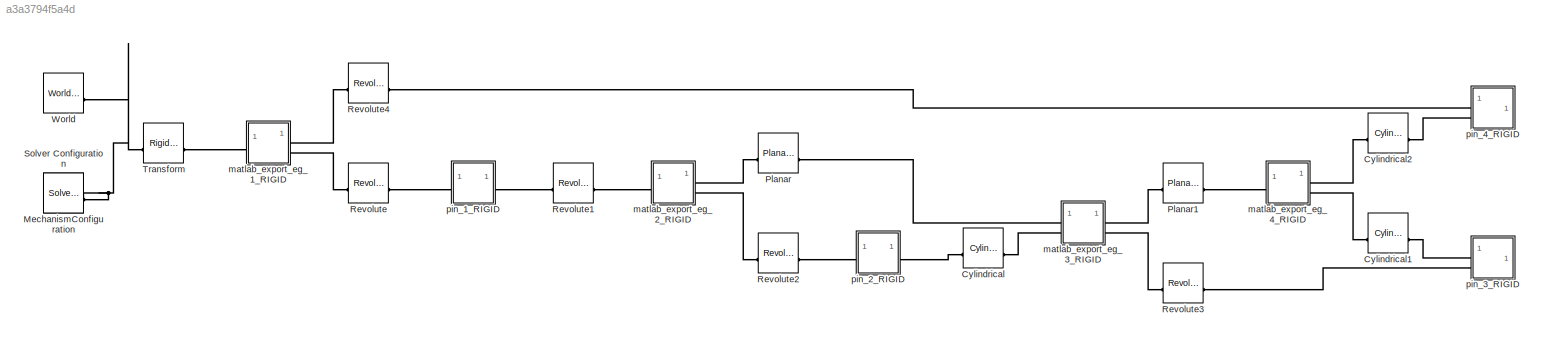
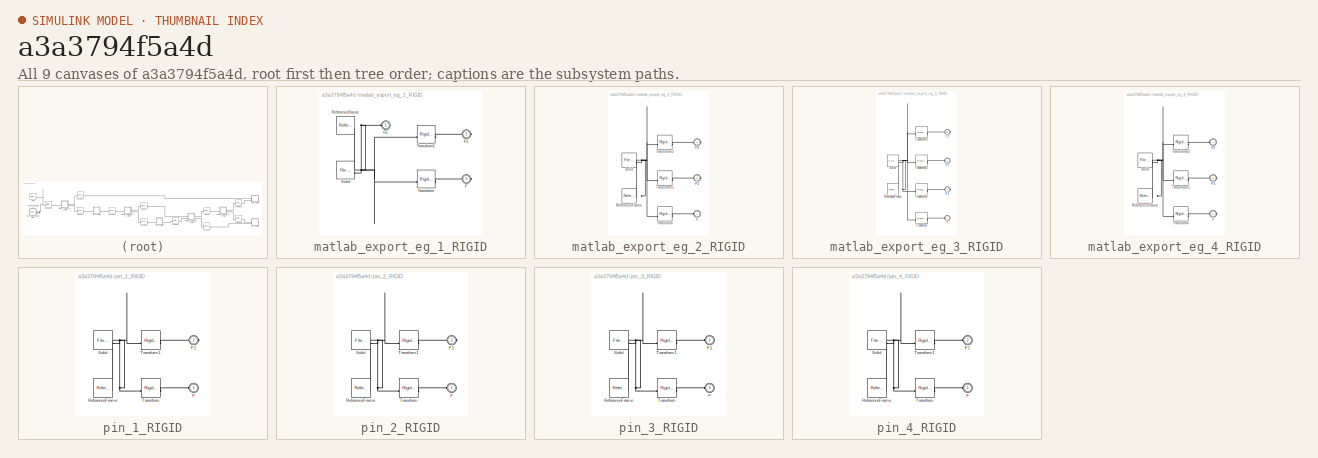
[diagram: thumbnail index - all 9 canvases of the model, root first then tree order]
MODEL slx_a3a3794f5a4d
KIND model
CONFIG AbsTol = auto
CONFIG EnableMultiTasking = off
CONFIG FixedStep = auto
CONFIG MaxStep = auto
CONFIG MinStep = auto
CONFIG RelTol = 1e-3
CONFIG SampleTimeConstraint = Unconstrained
CONFIG SolverName = VariableStepAuto
CONFIG StartTime = 0.0
CONFIG StopTime = 10.0
WORKSPACE source: external: MATLAB File  (data not in archive)
BLOCK [Reference] Cylindrical  REF=sm_lib/Joints/Cylindrical
Joint
  SourceBlock = sm_lib/Joints/Cylindrical\nJoint
  SourceType = Cylindrical\nJoint
BLOCK [Reference] Cylindrical1  REF=sm_lib/Joints/Cylindrical
Joint
  SourceBlock = sm_lib/Joints/Cylindrical\nJoint
  SourceType = Cylindrical\nJoint
BLOCK [Reference] Cylindrical2  REF=sm_lib/Joints/Cylindrical
Joint
  SourceBlock = sm_lib/Joints/Cylindrical\nJoint
  SourceType = Cylindrical\nJoint
BLOCK [Reference] MechanismConfiguration  REF=sm_lib/Utilities/Mechanism
Configuration
  SourceBlock = sm_lib/Utilities/Mechanism\nConfiguration
  SourceType = Mechanism\nConfiguration
BLOCK [Reference] Planar  REF=sm_lib/Joints/Planar Joint
  SourceBlock = sm_lib/Joints/Planar Joint
  SourceType = Planar Joint
BLOCK [Reference] Planar1  REF=sm_lib/Joints/Planar Joint
  SourceBlock = sm_lib/Joints/Planar Joint
  SourceType = Planar Joint
BLOCK [Reference] Revolute  REF=sm_lib/Joints/Revolute Joint
  SourceBlock = sm_lib/Joints/Revolute Joint
  SourceType = Revolute Joint
BLOCK [Reference] Revolute1  REF=sm_lib/Joints/Revolute Joint
  SourceBlock = sm_lib/Joints/Revolute Joint
  SourceType = Revolute Joint
BLOCK [Reference] Revolute2  REF=sm_lib/Joints/Revolute Joint
  SourceBlock = sm_lib/Joints/Revolute Joint
  SourceType = Revolute Joint
BLOCK [Reference] Revolute3  REF=sm_lib/Joints/Revolute Joint
  SourceBlock = sm_lib/Joints/Revolute Joint
  SourceType = Revolute Joint
BLOCK [Reference] Revolute4  REF=sm_lib/Joints/Revolute Joint
  SourceBlock = sm_lib/Joints/Revolute Joint
  SourceType = Revolute Joint
BLOCK [Reference] Solver Configuration  REF=nesl_utility/Solver
Configuration
  SourceBlock = nesl_utility/Solver\nConfiguration
  SourceType = Solver\nConfiguration
BLOCK [Reference] Transform  REF=sm_lib/Frames and
Transforms/Rigid
Transform
  SourceBlock = sm_lib/Frames and\nTransforms/Rigid\nTransform
  SourceType = Rigid\nTransform
BLOCK [Reference] World  REF=sm_lib/Frames and
Transforms/World Frame
  SourceBlock = sm_lib/Frames and\nTransforms/World Frame
  SourceType = World Frame
BLOCK [SubSystem] matlab_export_eg_1_RIGID
BLOCK [PMIOPort] matlab_export_eg_1_RIGID/F
  Port = 3
  Side = Right
BLOCK [PMIOPort] matlab_export_eg_1_RIGID/F1
  Port = 2
  Side = Right
BLOCK [PMIOPort] matlab_export_eg_1_RIGID/F2
  Side = Left
BLOCK [Reference] matlab_export_eg_1_RIGID/ReferenceFrame  REF=sm_lib/Frames and
Transforms/Reference
Frame
  SourceBlock = sm_lib/Frames and\nTransforms/Reference\nFrame
  SourceType = Reference\nFrame
BLOCK [Reference] matlab_export_eg_1_RIGID/Solid  REF=sm_lib/Body Elements/File Solid
  SourceBlock = sm_lib/Body Elements/File Solid
  SourceType = File Solid
BLOCK [Reference] matlab_export_eg_1_RIGID/Transform  REF=sm_lib/Frames and
Transforms/Rigid
Transform
  SourceBlock = sm_lib/Frames and\nTransforms/Rigid\nTransform
  SourceType = Rigid\nTransform
BLOCK [Reference] matlab_export_eg_1_RIGID/Transform1  REF=sm_lib/Frames and
Transforms/Rigid
Transform
  SourceBlock = sm_lib/Frames and\nTransforms/Rigid\nTransform
  SourceType = Rigid\nTransform
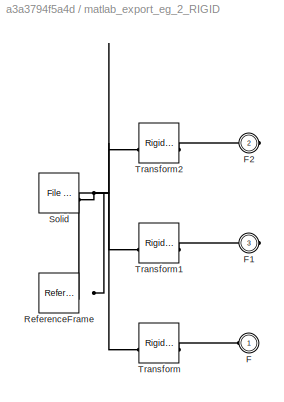
BLOCK [SubSystem] matlab_export_eg_2_RIGID
BLOCK [PMIOPort] matlab_export_eg_2_RIGID/F
  Side = Left
BLOCK [PMIOPort] matlab_export_eg_2_RIGID/F1
  Port = 3
  Side = Right
BLOCK [PMIOPort] matlab_export_eg_2_RIGID/F2
  Port = 2
  Side = Right
BLOCK [Reference] matlab_export_eg_2_RIGID/ReferenceFrame  REF=sm_lib/Frames and
Transforms/Reference
Frame
  SourceBlock = sm_lib/Frames and\nTransforms/Reference\nFrame
  SourceType = Reference\nFrame
BLOCK [Reference] matlab_export_eg_2_RIGID/Solid  REF=sm_lib/Body Elements/File Solid
  SourceBlock = sm_lib/Body Elements/File Solid
  SourceType = File Solid
BLOCK [Reference] matlab_export_eg_2_RIGID/Transform  REF=sm_lib/Frames and
Transforms/Rigid
Transform
  SourceBlock = sm_lib/Frames and\nTransforms/Rigid\nTransform
  SourceType = Rigid\nTransform
BLOCK [Reference] matlab_export_eg_2_RIGID/Transform1  REF=sm_lib/Frames and
Transforms/Rigid
Transform
  SourceBlock = sm_lib/Frames and\nTransforms/Rigid\nTransform
  SourceType = Rigid\nTransform
BLOCK [Reference] matlab_export_eg_2_RIGID/Transform2  REF=sm_lib/Frames and
Transforms/Rigid
Transform
  SourceBlock = sm_lib/Frames and\nTransforms/Rigid\nTransform
  SourceType = Rigid\nTransform
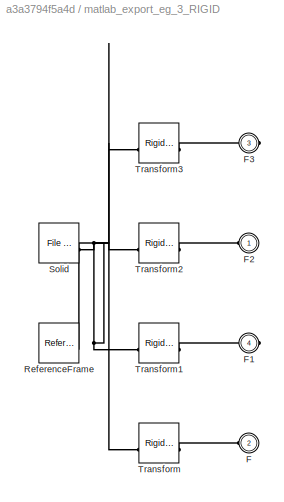
BLOCK [SubSystem] matlab_export_eg_3_RIGID
BLOCK [PMIOPort] matlab_export_eg_3_RIGID/F
  Port = 2
  Side = Left
BLOCK [PMIOPort] matlab_export_eg_3_RIGID/F1
  Port = 4
  Side = Right
BLOCK [PMIOPort] matlab_export_eg_3_RIGID/F2
  Side = Left
BLOCK [PMIOPort] matlab_export_eg_3_RIGID/F3
  Port = 3
  Side = Right
BLOCK [Reference] matlab_export_eg_3_RIGID/ReferenceFrame  REF=sm_lib/Frames and
Transforms/Reference
Frame
  SourceBlock = sm_lib/Frames and\nTransforms/Reference\nFrame
  SourceType = Reference\nFrame
BLOCK [Reference] matlab_export_eg_3_RIGID/Solid  REF=sm_lib/Body Elements/File Solid
  SourceBlock = sm_lib/Body Elements/File Solid
  SourceType = File Solid
BLOCK [Reference] matlab_export_eg_3_RIGID/Transform  REF=sm_lib/Frames and
Transforms/Rigid
Transform
  SourceBlock = sm_lib/Frames and\nTransforms/Rigid\nTransform
  SourceType = Rigid\nTransform
BLOCK [Reference] matlab_export_eg_3_RIGID/Transform1  REF=sm_lib/Frames and
Transforms/Rigid
Transform
  SourceBlock = sm_lib/Frames and\nTransforms/Rigid\nTransform
  SourceType = Rigid\nTransform
BLOCK [Reference] matlab_export_eg_3_RIGID/Transform2  REF=sm_lib/Frames and
Transforms/Rigid
Transform
  SourceBlock = sm_lib/Frames and\nTransforms/Rigid\nTransform
  SourceType = Rigid\nTransform
BLOCK [Reference] matlab_export_eg_3_RIGID/Transform3  REF=sm_lib/Frames and
Transforms/Rigid
Transform
  SourceBlock = sm_lib/Frames and\nTransforms/Rigid\nTransform
  SourceType = Rigid\nTransform
BLOCK [SubSystem] matlab_export_eg_4_RIGID
BLOCK [PMIOPort] matlab_export_eg_4_RIGID/F
  Port = 3
  Side = Right
BLOCK [PMIOPort] matlab_export_eg_4_RIGID/F1
  Port = 2
  Side = Right
BLOCK [PMIOPort] matlab_export_eg_4_RIGID/F2
  Side = Left
BLOCK [Reference] matlab_export_eg_4_RIGID/ReferenceFrame  REF=sm_lib/Frames and
Transforms/Reference
Frame
  SourceBlock = sm_lib/Frames and\nTransforms/Reference\nFrame
  SourceType = Reference\nFrame
BLOCK [Reference] matlab_export_eg_4_RIGID/Solid  REF=sm_lib/Body Elements/File Solid
  SourceBlock = sm_lib/Body Elements/File Solid
  SourceType = File Solid
BLOCK [Reference] matlab_export_eg_4_RIGID/Transform  REF=sm_lib/Frames and
Transforms/Rigid
Transform
  SourceBlock = sm_lib/Frames and\nTransforms/Rigid\nTransform
  SourceType = Rigid\nTransform
BLOCK [Reference] matlab_export_eg_4_RIGID/Transform1  REF=sm_lib/Frames and
Transforms/Rigid
Transform
  SourceBlock = sm_lib/Frames and\nTransforms/Rigid\nTransform
  SourceType = Rigid\nTransform
BLOCK [Reference] matlab_export_eg_4_RIGID/Transform2  REF=sm_lib/Frames and
Transforms/Rigid
Transform
  SourceBlock = sm_lib/Frames and\nTransforms/Rigid\nTransform
  SourceType = Rigid\nTransform
BLOCK [SubSystem] pin_1_RIGID
BLOCK [PMIOPort] pin_1_RIGID/F
  Side = Left
BLOCK [PMIOPort] pin_1_RIGID/F1
  Port = 2
  Side = Right
BLOCK [Reference] pin_1_RIGID/ReferenceFrame  REF=sm_lib/Frames and
Transforms/Reference
Frame
  SourceBlock = sm_lib/Frames and\nTransforms/Reference\nFrame
  SourceType = Reference\nFrame
BLOCK [Reference] pin_1_RIGID/Solid  REF=sm_lib/Body Elements/File Solid
  SourceBlock = sm_lib/Body Elements/File Solid
  SourceType = File Solid
BLOCK [Reference] pin_1_RIGID/Transform  REF=sm_lib/Frames and
Transforms/Rigid
Transform
  SourceBlock = sm_lib/Frames and\nTransforms/Rigid\nTransform
  SourceType = Rigid\nTransform
BLOCK [Reference] pin_1_RIGID/Transform1  REF=sm_lib/Frames and
Transforms/Rigid
Transform
  SourceBlock = sm_lib/Frames and\nTransforms/Rigid\nTransform
  SourceType = Rigid\nTransform
BLOCK [SubSystem] pin_2_RIGID
BLOCK [PMIOPort] pin_2_RIGID/F
  Side = Left
BLOCK [PMIOPort] pin_2_RIGID/F1
  Port = 2
  Side = Right
BLOCK [Reference] pin_2_RIGID/ReferenceFrame  REF=sm_lib/Frames and
Transforms/Reference
Frame
  SourceBlock = sm_lib/Frames and\nTransforms/Reference\nFrame
  SourceType = Reference\nFrame
BLOCK [Reference] pin_2_RIGID/Solid  REF=sm_lib/Body Elements/File Solid
  SourceBlock = sm_lib/Body Elements/File Solid
  SourceType = File Solid
BLOCK [Reference] pin_2_RIGID/Transform  REF=sm_lib/Frames and
Transforms/Rigid
Transform
  SourceBlock = sm_lib/Frames and\nTransforms/Rigid\nTransform
  SourceType = Rigid\nTransform
BLOCK [Reference] pin_2_RIGID/Transform1  REF=sm_lib/Frames and
Transforms/Rigid
Transform
  SourceBlock = sm_lib/Frames and\nTransforms/Rigid\nTransform
  SourceType = Rigid\nTransform
BLOCK [SubSystem] pin_3_RIGID
BLOCK [PMIOPort] pin_3_RIGID/F
  Port = 2
  Side = Left
BLOCK [PMIOPort] pin_3_RIGID/F1
  Side = Left
BLOCK [Reference] pin_3_RIGID/ReferenceFrame  REF=sm_lib/Frames and
Transforms/Reference
Frame
  SourceBlock = sm_lib/Frames and\nTransforms/Reference\nFrame
  SourceType = Reference\nFrame
BLOCK [Reference] pin_3_RIGID/Solid  REF=sm_lib/Body Elements/File Solid
  SourceBlock = sm_lib/Body Elements/File Solid
  SourceType = File Solid
BLOCK [Reference] pin_3_RIGID/Transform  REF=sm_lib/Frames and
Transforms/Rigid
Transform
  SourceBlock = sm_lib/Frames and\nTransforms/Rigid\nTransform
  SourceType = Rigid\nTransform
BLOCK [Reference] pin_3_RIGID/Transform1  REF=sm_lib/Frames and
Transforms/Rigid
Transform
  SourceBlock = sm_lib/Frames and\nTransforms/Rigid\nTransform
  SourceType = Rigid\nTransform
BLOCK [SubSystem] pin_4_RIGID
BLOCK [PMIOPort] pin_4_RIGID/F
  Side = Left
BLOCK [PMIOPort] pin_4_RIGID/F1
  Port = 2
  Side = Left
BLOCK [Reference] pin_4_RIGID/ReferenceFrame  REF=sm_lib/Frames and
Transforms/Reference
Frame
  SourceBlock = sm_lib/Frames and\nTransforms/Reference\nFrame
  SourceType = Reference\nFrame
BLOCK [Reference] pin_4_RIGID/Solid  REF=sm_lib/Body Elements/File Solid
  SourceBlock = sm_lib/Body Elements/File Solid
  SourceType = File Solid
BLOCK [Reference] pin_4_RIGID/Transform  REF=sm_lib/Frames and
Transforms/Rigid
Transform
  SourceBlock = sm_lib/Frames and\nTransforms/Rigid\nTransform
  SourceType = Rigid\nTransform
BLOCK [Reference] pin_4_RIGID/Transform1  REF=sm_lib/Frames and
Transforms/Rigid
Transform
  SourceBlock = sm_lib/Frames and\nTransforms/Rigid\nTransform
  SourceType = Rigid\nTransform
PLINE Cylindrical1:LConn1 -- matlab_export_eg_4_RIGID:RConn2
PLINE Cylindrical1:RConn1 -- pin_3_RIGID:LConn1
PLINE Cylindrical2:LConn1 -- matlab_export_eg_4_RIGID:RConn1
PLINE Cylindrical2:RConn1 -- pin_4_RIGID:LConn2
PLINE Cylindrical:LConn1 -- pin_2_RIGID:RConn1
PLINE Cylindrical:RConn1 -- matlab_export_eg_3_RIGID:LConn2
PNET net1: MechanismConfiguration:RConn1 -- Solver Configuration:RConn1 -- Transform:LConn1 -- World:RConn1
PLINE Planar1:LConn1 -- matlab_export_eg_3_RIGID:RConn1
PLINE Planar1:RConn1 -- matlab_export_eg_4_RIGID:LConn1
PLINE Planar:LConn1 -- matlab_export_eg_2_RIGID:RConn1
PLINE Planar:RConn1 -- matlab_export_eg_3_RIGID:LConn1
PLINE Revolute1:LConn1 -- pin_1_RIGID:RConn1
PLINE Revolute1:RConn1 -- matlab_export_eg_2_RIGID:LConn1
PLINE Revolute2:LConn1 -- matlab_export_eg_2_RIGID:RConn2
PLINE Revolute2:RConn1 -- pin_2_RIGID:LConn1
PLINE Revolute3:LConn1 -- matlab_export_eg_3_RIGID:RConn2
PLINE Revolute3:RConn1 -- pin_3_RIGID:LConn2
PLINE Revolute4:LConn1 -- matlab_export_eg_1_RIGID:RConn1
PLINE Revolute4:RConn1 -- pin_4_RIGID:LConn1
PLINE Revolute:LConn1 -- matlab_export_eg_1_RIGID:RConn2
PLINE Revolute:RConn1 -- pin_1_RIGID:LConn1
PLINE Transform:RConn1 -- matlab_export_eg_1_RIGID:LConn1
PLINE matlab_export_eg_1_RIGID/F1:RConn1 -- matlab_export_eg_1_RIGID/Transform1:RConn1
PNET net2: matlab_export_eg_1_RIGID/F2:RConn1 -- matlab_export_eg_1_RIGID/ReferenceFrame:RConn1 -- matlab_export_eg_1_RIGID/Solid:RConn1 -- matlab_export_eg_1_RIGID/Transform1:LConn1 -- matlab_export_eg_1_RIGID/Transform:LConn1
PLINE matlab_export_eg_1_RIGID/F:RConn1 -- matlab_export_eg_1_RIGID/Transform:RConn1
PLINE matlab_export_eg_2_RIGID/F1:RConn1 -- matlab_export_eg_2_RIGID/Transform1:RConn1
PLINE matlab_export_eg_2_RIGID/F2:RConn1 -- matlab_export_eg_2_RIGID/Transform2:RConn1
PLINE matlab_export_eg_2_RIGID/F:RConn1 -- matlab_export_eg_2_RIGID/Transform:RConn1
PNET net3: matlab_export_eg_2_RIGID/ReferenceFrame:RConn1 -- matlab_export_eg_2_RIGID/Solid:RConn1 -- matlab_export_eg_2_RIGID/Transform1:LConn1 -- matlab_export_eg_2_RIGID/Transform2:LConn1 -- matlab_export_eg_2_RIGID/Transform:LConn1
PLINE matlab_export_eg_3_RIGID/F1:RConn1 -- matlab_export_eg_3_RIGID/Transform1:RConn1
PLINE matlab_export_eg_3_RIGID/F2:RConn1 -- matlab_export_eg_3_RIGID/Transform2:RConn1
PLINE matlab_export_eg_3_RIGID/F3:RConn1 -- matlab_export_eg_3_RIGID/Transform3:RConn1
PLINE matlab_export_eg_3_RIGID/F:RConn1 -- matlab_export_eg_3_RIGID/Transform:RConn1
PNET net4: matlab_export_eg_3_RIGID/ReferenceFrame:RConn1 -- matlab_export_eg_3_RIGID/Solid:RConn1 -- matlab_export_eg_3_RIGID/Transform1:LConn1 -- matlab_export_eg_3_RIGID/Transform2:LConn1 -- matlab_export_eg_3_RIGID/Transform3:LConn1 -- matlab_export_eg_3_RIGID/Transform:LConn1
PLINE matlab_export_eg_4_RIGID/F1:RConn1 -- matlab_export_eg_4_RIGID/Transform1:RConn1
PLINE matlab_export_eg_4_RIGID/F2:RConn1 -- matlab_export_eg_4_RIGID/Transform2:RConn1
PLINE matlab_export_eg_4_RIGID/F:RConn1 -- matlab_export_eg_4_RIGID/Transform:RConn1
PNET net5: matlab_export_eg_4_RIGID/ReferenceFrame:RConn1 -- matlab_export_eg_4_RIGID/Solid:RConn1 -- matlab_export_eg_4_RIGID/Transform1:LConn1 -- matlab_export_eg_4_RIGID/Transform2:LConn1 -- matlab_export_eg_4_RIGID/Transform:LConn1
PLINE pin_1_RIGID/F1:RConn1 -- pin_1_RIGID/Transform1:RConn1
PLINE pin_1_RIGID/F:RConn1 -- pin_1_RIGID/Transform:RConn1
PNET net6: pin_1_RIGID/ReferenceFrame:RConn1 -- pin_1_RIGID/Solid:RConn1 -- pin_1_RIGID/Transform1:LConn1 -- pin_1_RIGID/Transform:LConn1
PLINE pin_2_RIGID/F1:RConn1 -- pin_2_RIGID/Transform1:RConn1
PLINE pin_2_RIGID/F:RConn1 -- pin_2_RIGID/Transform:RConn1
PNET net7: pin_2_RIGID/ReferenceFrame:RConn1 -- pin_2_RIGID/Solid:RConn1 -- pin_2_RIGID/Transform1:LConn1 -- pin_2_RIGID/Transform:LConn1
PLINE pin_3_RIGID/F1:RConn1 -- pin_3_RIGID/Transform1:RConn1
PLINE pin_3_RIGID/F:RConn1 -- pin_3_RIGID/Transform:RConn1
PNET net8: pin_3_RIGID/ReferenceFrame:RConn1 -- pin_3_RIGID/Solid:RConn1 -- pin_3_RIGID/Transform1:LConn1 -- pin_3_RIGID/Transform:LConn1
PLINE pin_4_RIGID/F1:RConn1 -- pin_4_RIGID/Transform1:RConn1
PLINE pin_4_RIGID/F:RConn1 -- pin_4_RIGID/Transform:RConn1
PNET net9: pin_4_RIGID/ReferenceFrame:RConn1 -- pin_4_RIGID/Solid:RConn1 -- pin_4_RIGID/Transform1:LConn1 -- pin_4_RIGID/Transform:LConn1
note: PNET lines group multi-terminal physical nets as a canonical sorted terminal list (undirected conserving connections); 2-terminal nets keep the pairwise PLINE form
